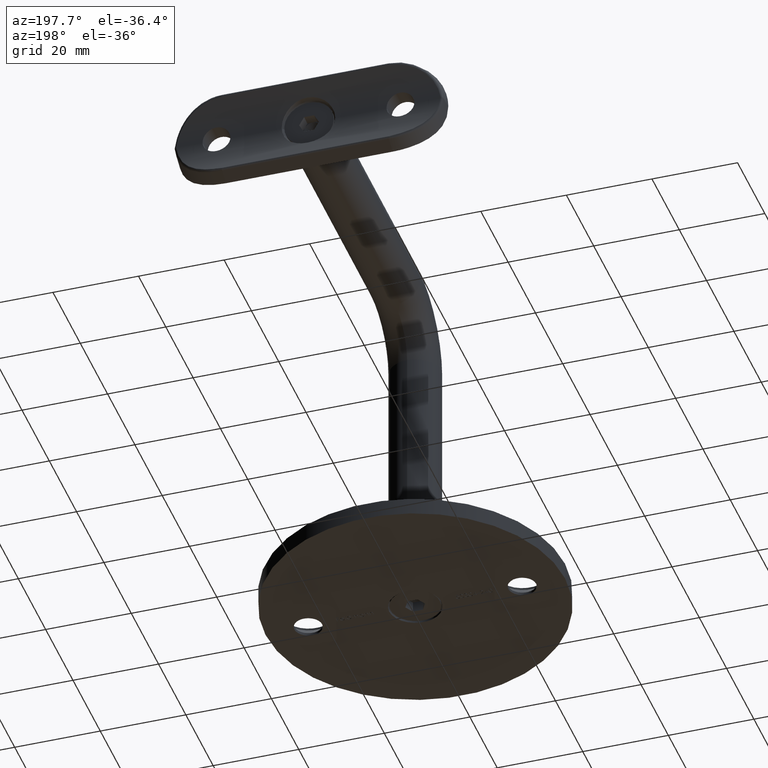
[diagram: clean part render]
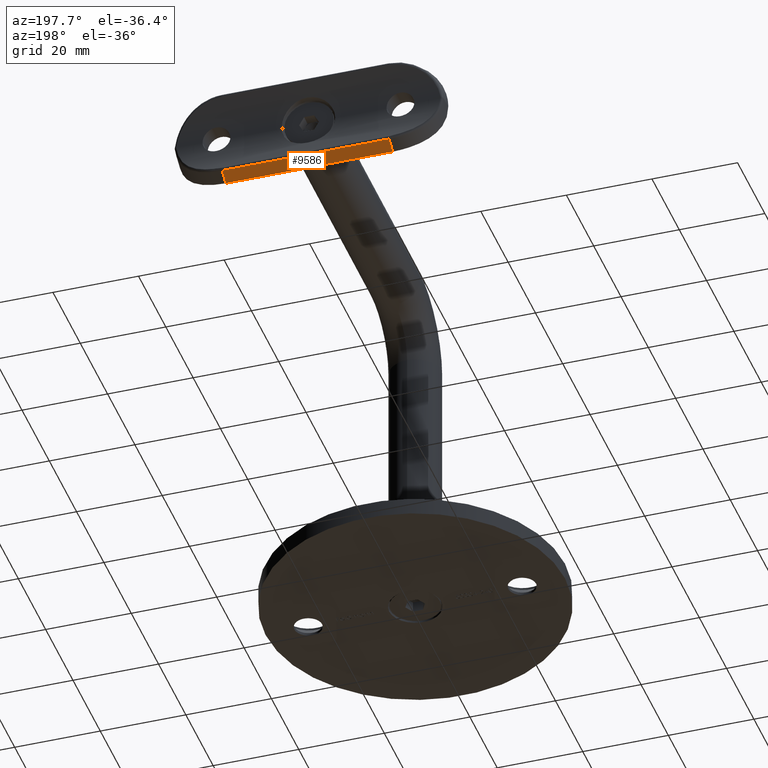
[diagram: same view with one face highlighted and labeled with its STEP entity id]
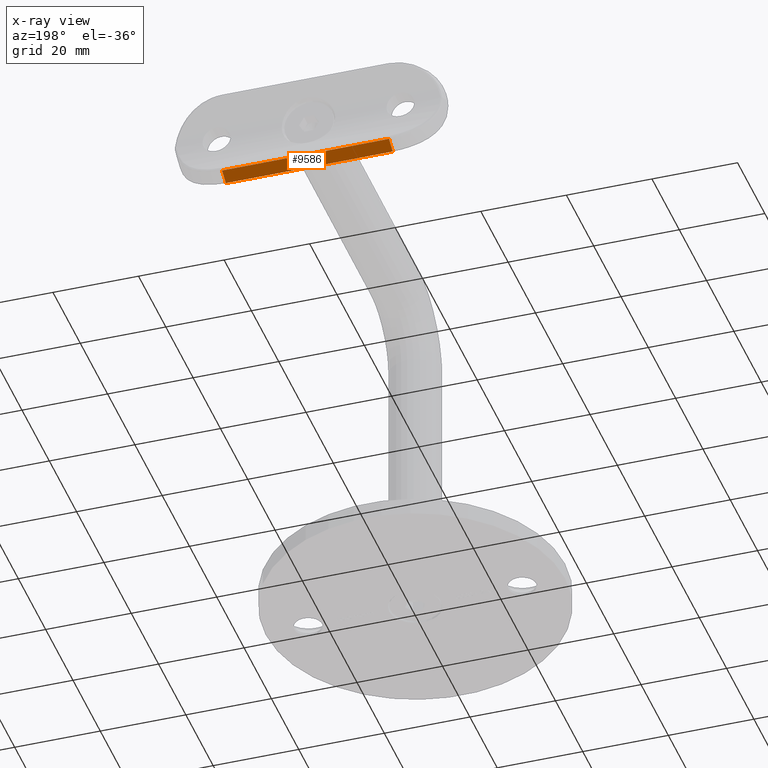
[diagram: x-ray of the same camera — body ghosted, the highlighted face saturated]
A machine part, auxiliary view. The second image highlights one B-rep face of the part: STEP entity #9586.
The next image is the same camera in x-ray: the body ghosted, the highlighted face saturated — about 0% of this face is hidden behind the body in this view.
In plain terms, the highlighted planar face has unit normal (0, -0.4819, 0.8762).
Its self-contained STEP definition (entity closure, byte-faithful):
#778 = ORIENTED_EDGE ( 'NONE', *, *, #13257, .T. ) ;
#1208 = DIRECTION ( 'NONE',  ( -0.4819277108433721035, 0.8762109800277938509, -2.128825503829663209E-31 ) ) ;
#1385 = VERTEX_POINT ( 'NONE', #17961 ) ;
#1952 = AXIS2_PLACEMENT_3D ( 'NONE', #14823, #16292, #19390 ) ;
#1997 = EDGE_CURVE ( 'NONE', #3581, #13710, #8154, .T. ) ;
#2301 = CARTESIAN_POINT ( 'NONE',  ( 10.45505487545768375, 2.191269701761560995, 19.50000000000005329 ) ) ;
#3581 = VERTEX_POINT ( 'NONE', #3729 ) ;
#3671 = ORIENTED_EDGE ( 'NONE', *, *, #1997, .T. ) ;
#3729 = CARTESIAN_POINT ( 'NONE',  ( 11.99999999999999645, -0.6176534026920421638, -19.50000000000004974 ) ) ;
#3756 = DIRECTION ( 'NONE',  ( 0.4819277108433721035, -0.8762109800277938509, 2.128825503829663209E-31 ) ) ;
#4105 = ORIENTED_EDGE ( 'NONE', *, *, #13287, .T. ) ;
#4252 = VECTOR ( 'NONE', #11400, 1000.000000000000000 ) ;
#5433 = VECTOR ( 'NONE', #3756, 1000.000000000000114 ) ;
#6037 = VECTOR ( 'NONE', #1208, 1000.000000000000114 ) ;
#6223 = EDGE_CURVE ( 'NONE', #1385, #3581, #15144, .T. ) ;
#7437 = PLANE ( 'NONE',  #1952 ) ;
#8154 = LINE ( 'NONE', #18104, #6037 ) ;
#8805 = EDGE_LOOP ( 'NONE', ( #3671, #4105, #778, #18206 ) ) ;
#9421 = LINE ( 'NONE', #17361, #5433 ) ;
#9586 = ADVANCED_FACE ( 'NONE', ( #14717 ), #7437, .F. ) ;
#9676 = VERTEX_POINT ( 'NONE', #15074 ) ;
#11060 = CARTESIAN_POINT ( 'NONE',  ( 11.99999999999999645, -0.6176534026920421638, 31.50000000000009592 ) ) ;
#11400 = DIRECTION ( 'NONE',  ( 4.190864831286737202E-31, 5.527938071378096397E-48, 1.000000000000000000 ) ) ;
#13257 = EDGE_CURVE ( 'NONE', #9676, #1385, #9421, .T. ) ;
#13287 = EDGE_CURVE ( 'NONE', #13710, #9676, #16998, .T. ) ;
#13710 = VERTEX_POINT ( 'NONE', #15955 ) ;
#14717 = FACE_OUTER_BOUND ( 'NONE', #8805, .T. ) ;
#14823 = CARTESIAN_POINT ( 'NONE',  ( 11.99999999999999645, -0.6176534026920421638, 31.50000000000009592 ) ) ;
#15074 = CARTESIAN_POINT ( 'NONE',  ( 10.45505487545768375, 2.191269701761560995, 19.50000000000005329 ) ) ;
#15144 = LINE ( 'NONE', #11060, #19403 ) ;
#15955 = CARTESIAN_POINT ( 'NONE',  ( 10.45505487545768375, 2.191269701761560995, -19.50000000000004974 ) ) ;
#16292 = DIRECTION ( 'NONE',  ( -0.8762109800277939620, -0.4819277108433722145, -3.464434927707350555E-31 ) ) ;
#16998 = LINE ( 'NONE', #2301, #4252 ) ;
#17361 = CARTESIAN_POINT ( 'NONE',  ( 12.00000000000001066, -0.6176534026920560416, 19.50000000000005329 ) ) ;
#17961 = CARTESIAN_POINT ( 'NONE',  ( 11.99999999999999645, -0.6176534026920421638, 19.50000000000005329 ) ) ;
#18104 = CARTESIAN_POINT ( 'NONE',  ( 11.99999999999999645, -0.6176534026920421638, -19.50000000000004974 ) ) ;
#18206 = ORIENTED_EDGE ( 'NONE', *, *, #6223, .T. ) ;
#18820 = DIRECTION ( 'NONE',  ( -4.190864831286737202E-31, -5.527938071378096397E-48, -1.000000000000000000 ) ) ;
#19390 = DIRECTION ( 'NONE',  ( 0.4819277108433721590, -0.8762109800277938509, 2.128825503829662771E-31 ) ) ;
#19403 = VECTOR ( 'NONE', #18820, 1000.000000000000000 ) ;